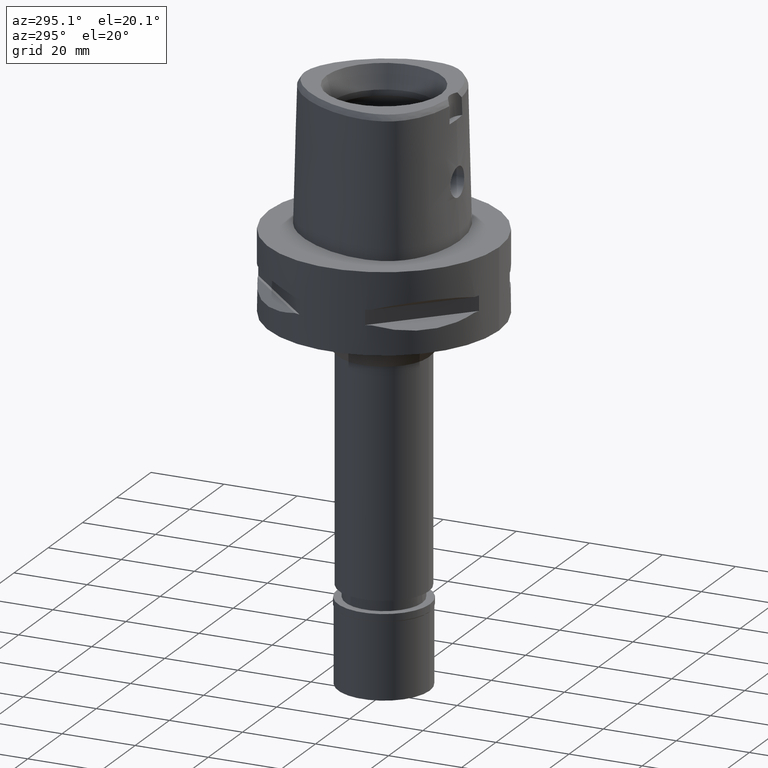
[diagram: clean part render]
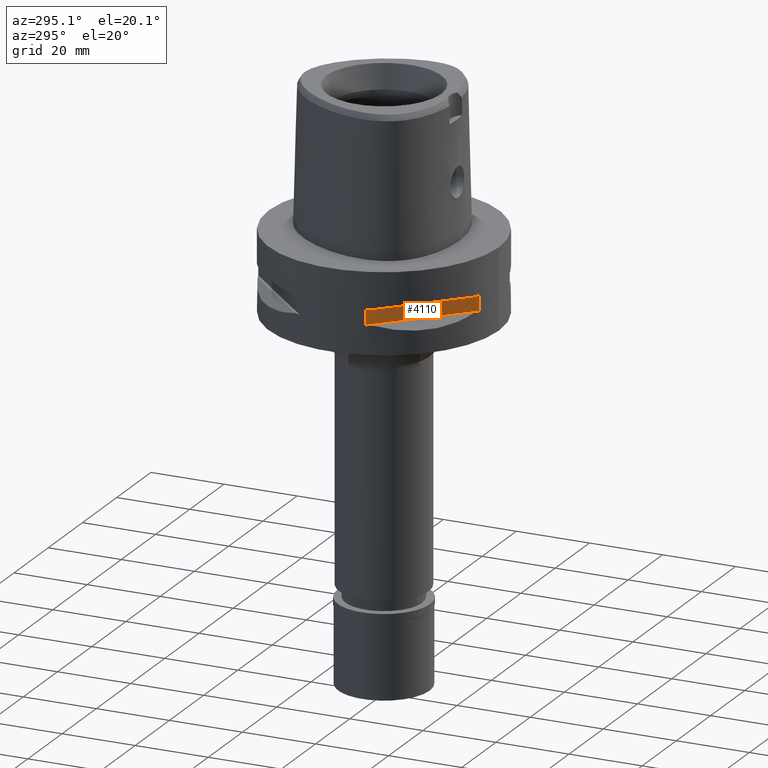
[diagram: same view with one face highlighted and labeled with its STEP entity id]
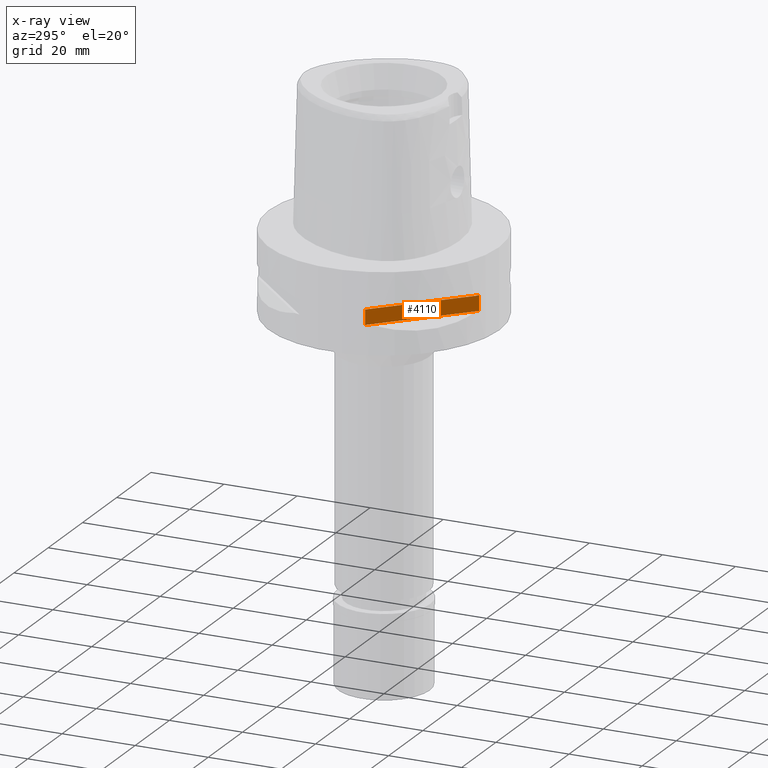
[diagram: x-ray of the same camera — body ghosted, the highlighted face saturated]
A machine part, auxiliary view. The second image highlights one B-rep face of the part: STEP entity #4110.
The next image is the same camera in x-ray: the body ghosted, the highlighted face saturated — about 0% of this face is hidden behind the body in this view.
In plain terms, the highlighted planar face has unit normal (0.7071, 0.7071, 0).
Its self-contained STEP definition (entity closure, byte-faithful):
#220 = LINE ( 'NONE', #1781, #3771 ) ;
#315 = EDGE_CURVE ( 'NONE', #4723, #4185, #220, .T. ) ;
#554 = ORIENTED_EDGE ( 'NONE', *, *, #315, .T. ) ;
#670 = CARTESIAN_POINT ( 'NONE',  ( -30.19251670572000279, -8.981198972016999349, -14.05000000000000071 ) ) ;
#762 = VERTEX_POINT ( 'NONE', #4784 ) ;
#770 = CARTESIAN_POINT ( 'NONE',  ( -8.981198972016999349, -30.19251670572000279, -14.05000000000000071 ) ) ;
#1127 = DIRECTION ( 'NONE',  ( 0.0000000000000000000, 0.0000000000000000000, -1.000000000000000000 ) ) ;
#1215 = DIRECTION ( 'NONE',  ( 0.7071067811865474617, -0.7071067811865474617, 0.0000000000000000000 ) ) ;
#1359 = EDGE_CURVE ( 'NONE', #762, #1564, #2355, .T. ) ;
#1420 = ORIENTED_EDGE ( 'NONE', *, *, #1359, .F. ) ;
#1564 = VERTEX_POINT ( 'NONE', #4420 ) ;
#1585 = DIRECTION ( 'NONE',  ( 0.0000000000000000000, 0.0000000000000000000, 1.000000000000000000 ) ) ;
#1740 = VECTOR ( 'NONE', #1127, 1000.000000000000000 ) ;
#1781 = CARTESIAN_POINT ( 'NONE',  ( -30.19251670572000279, -8.981198972016999349, -14.05000000000000071 ) ) ;
#1890 = AXIS2_PLACEMENT_3D ( 'NONE', #2270, #2607, #4180 ) ;
#2023 = ORIENTED_EDGE ( 'NONE', *, *, #2114, .T. ) ;
#2114 = EDGE_CURVE ( 'NONE', #4185, #1564, #2714, .T. ) ;
#2174 = ORIENTED_EDGE ( 'NONE', *, *, #2454, .T. ) ;
#2270 = CARTESIAN_POINT ( 'NONE',  ( -7.212489168103000559, -31.96122650962999856, -9.950000000000001066 ) ) ;
#2355 = LINE ( 'NONE', #3930, #3356 ) ;
#2454 = EDGE_CURVE ( 'NONE', #762, #4723, #3351, .T. ) ;
#2607 = DIRECTION ( 'NONE',  ( 0.7071067811865475727, 0.7071067811865475727, 0.0000000000000000000 ) ) ;
#2714 = LINE ( 'NONE', #770, #4937 ) ;
#2989 = CARTESIAN_POINT ( 'NONE',  ( -8.981198972019999616, -30.19251670572000279, -14.05000000000000071 ) ) ;
#3351 = LINE ( 'NONE', #4650, #1740 ) ;
#3356 = VECTOR ( 'NONE', #1215, 1000.000000000000114 ) ;
#3414 = FACE_OUTER_BOUND ( 'NONE', #3523, .T. ) ;
#3523 = EDGE_LOOP ( 'NONE', ( #1420, #2174, #554, #2023 ) ) ;
#3771 = VECTOR ( 'NONE', #4527, 1000.000000000000114 ) ;
#3930 = CARTESIAN_POINT ( 'NONE',  ( -30.19251670572000279, -8.981198972016999349, -9.950000000000001066 ) ) ;
#4110 = ADVANCED_FACE ( 'NONE', ( #3414 ), #4990, .F. ) ;
#4180 = DIRECTION ( 'NONE',  ( 0.0000000000000000000, 0.0000000000000000000, -1.000000000000000000 ) ) ;
#4185 = VERTEX_POINT ( 'NONE', #2989 ) ;
#4420 = CARTESIAN_POINT ( 'NONE',  ( -8.981198972016999349, -30.19251670572000279, -9.950000000000001066 ) ) ;
#4527 = DIRECTION ( 'NONE',  ( 0.7071067811865474617, -0.7071067811865474617, 0.0000000000000000000 ) ) ;
#4650 = CARTESIAN_POINT ( 'NONE',  ( -30.19251670572000279, -8.981198972016999349, -9.950000000000001066 ) ) ;
#4723 = VERTEX_POINT ( 'NONE', #670 ) ;
#4784 = CARTESIAN_POINT ( 'NONE',  ( -30.19251670572000279, -8.981198972019999616, -9.950000000000001066 ) ) ;
#4937 = VECTOR ( 'NONE', #1585, 1000.000000000000000 ) ;
#4990 = PLANE ( 'NONE',  #1890 ) ;